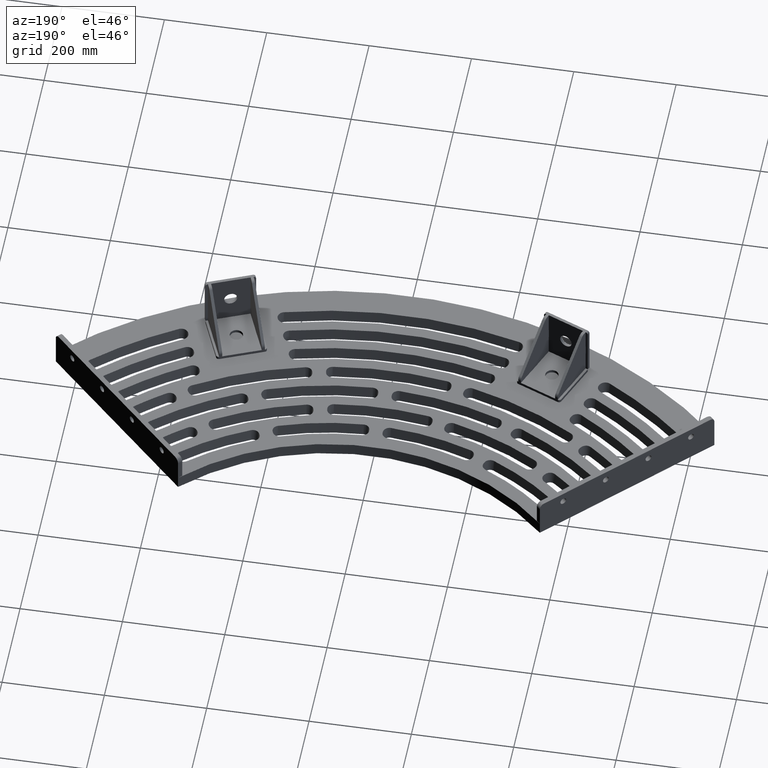
[diagram: clean part render]
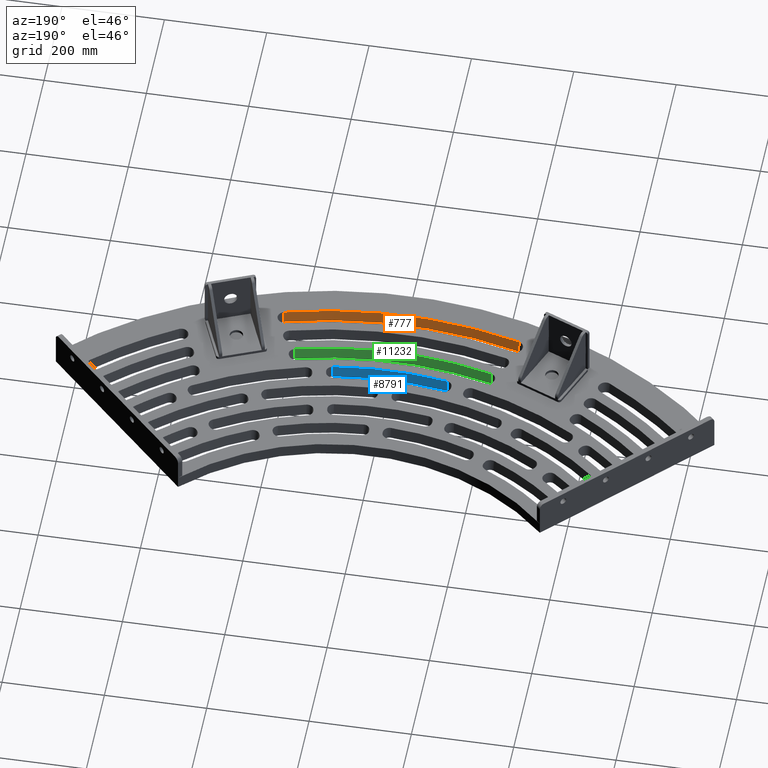
[diagram: same view with three faces highlighted in distinct colors, each labeled with its STEP entity id]
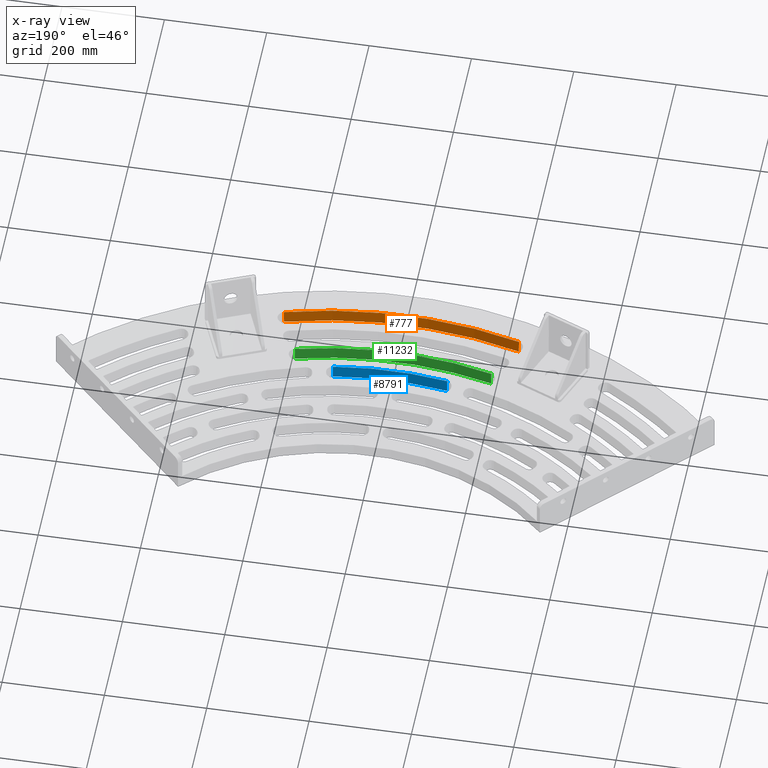
[diagram: x-ray of the same camera — body ghosted, the three highlighted faces saturated]
A machine part, auxiliary view with three faces highlighted in distinct colors.
The next image is the same camera in x-ray (body ghosted, the three faces saturated) — at least one of them is partly hidden behind the body in this view.
Their STEP definitions:

[orange] entity #777 — the highlighted conical surface has half-angle 4 deg.
#137 = VERTEX_POINT ( 'NONE', #551 ) ;
#373 = VERTEX_POINT ( 'NONE', #11438 ) ;
#551 = CARTESIAN_POINT ( 'NONE',  ( 229.2132726344615321, -823.7027835622509429, 1.665334536937734811E-13 ) ) ;
#571 = VERTEX_POINT ( 'NONE', #3652 ) ;
#574 = CARTESIAN_POINT ( 'NONE',  ( 0.000000000000000000, 0.000000000000000000, 0.000000000000000000 ) ) ;
#777 = ADVANCED_FACE ( 'NONE', ( #4763 ), #3817, .F. ) ;
#1116 = LINE ( 'NONE', #11619, #1587 ) ;
#1379 = ORIENTED_EDGE ( 'NONE', *, *, #3030, .T. ) ;
#1587 = VECTOR ( 'NONE', #4049, 1000.000000000000114 ) ;
#1700 = VECTOR ( 'NONE', #1847, 1000.000000000000114 ) ;
#1716 = LINE ( 'NONE', #7487, #1700 ) ;
#1721 = ORIENTED_EDGE ( 'NONE', *, *, #9944, .F. ) ;
#1847 = DIRECTION ( 'NONE',  ( 0.01870071302260914795, 0.06720304280061172031, 0.9975640502598241977 ) ) ;
#2896 = AXIS2_PLACEMENT_3D ( 'NONE', #8711, #9876, #4234 ) ;
#2908 = ORIENTED_EDGE ( 'NONE', *, *, #11675, .F. ) ;
#3021 = DIRECTION ( 'NONE',  ( 1.000000000000000000, -6.192194466414940491E-16, -2.185460951963199771E-18 ) ) ;
#3030 = EDGE_CURVE ( 'NONE', #11395, #571, #1716, .T. ) ;
#3652 = CARTESIAN_POINT ( 'NONE',  ( -229.2132726344603952, -823.7027835622508292, 1.561251128379126385E-13 ) ) ;
#3817 = CONICAL_SURFACE ( 'NONE', #4610, 855.0000000000000000, 0.06981317007977333455 ) ;
#4049 = DIRECTION ( 'NONE',  ( -0.01870071302260920346, 0.06720304280061172031, 0.9975640502598241977 ) ) ;
#4234 = DIRECTION ( 'NONE',  ( -1.000000000000000000, 6.192194466414939505E-16, 4.049552800030453744E-18 ) ) ;
#4610 = AXIS2_PLACEMENT_3D ( 'NONE', #8560, #10536, #3021 ) ;
#4763 = FACE_OUTER_BOUND ( 'NONE', #7913, .T. ) ;
#5203 = AXIS2_PLACEMENT_3D ( 'NONE', #574, #10220, #5437 ) ;
#5437 = DIRECTION ( 'NONE',  ( 1.000000000000000000, -6.192194466414940491E-16, -2.185460951963199771E-18 ) ) ;
#6293 = ORIENTED_EDGE ( 'NONE', *, *, #8084, .T. ) ;
#7392 = CIRCLE ( 'NONE', #5203, 855.0000000000000000 ) ;
#7438 = CIRCLE ( 'NONE', #2896, 856.7481702985877519 ) ;
#7487 = CARTESIAN_POINT ( 'NONE',  ( -229.2132726344603952, -823.7027835622508292, 1.526556658859590243E-13 ) ) ;
#7913 = EDGE_LOOP ( 'NONE', ( #6293, #2908, #1721, #1379 ) ) ;
#8084 = EDGE_CURVE ( 'NONE', #571, #137, #7392, .T. ) ;
#8560 = CARTESIAN_POINT ( 'NONE',  ( 0.000000000000000000, 0.000000000000000000, 0.000000000000000000 ) ) ;
#8711 = CARTESIAN_POINT ( 'NONE',  ( 5.463652379908002509E-17, 4.878909776184770742E-15, -25.00000000000000000 ) ) ;
#9132 = CARTESIAN_POINT ( 'NONE',  ( -229.6819320909067983, -825.3869622067976479, -24.99999999999984368 ) ) ;
#9876 = DIRECTION ( 'NONE',  ( -2.185460951963199771E-18, -1.951563910473907981E-16, 1.000000000000000000 ) ) ;
#9944 = EDGE_CURVE ( 'NONE', #11395, #373, #7438, .T. ) ;
#10220 = DIRECTION ( 'NONE',  ( -2.185460951963199771E-18, -1.951563910473907981E-16, 1.000000000000000000 ) ) ;
#10536 = DIRECTION ( 'NONE',  ( 2.185460951963199771E-18, 1.951563910473907981E-16, -1.000000000000000000 ) ) ;
#11395 = VERTEX_POINT ( 'NONE', #9132 ) ;
#11438 = CARTESIAN_POINT ( 'NONE',  ( 229.6819320909079352, -825.3869622067976479, -24.99999999999983658 ) ) ;
#11619 = CARTESIAN_POINT ( 'NONE',  ( 229.2132726344615321, -823.7027835622508292, 1.595945597898662527E-13 ) ) ;
#11675 = EDGE_CURVE ( 'NONE', #373, #137, #1116, .T. ) ;

[blue] entity #8791 — the highlighted conical surface has half-angle 4 deg.
#23 = EDGE_CURVE ( 'NONE', #2207, #9257, #2454, .T. ) ;
#334 = DIRECTION ( 'NONE',  ( -2.185460951963199771E-18, -1.951563910473907981E-16, 1.000000000000000000 ) ) ;
#1282 = VERTEX_POINT ( 'NONE', #10810 ) ;
#1325 = CARTESIAN_POINT ( 'NONE',  ( -111.5375193751718825, -696.1209534065413891, 1.249000902703301108E-13 ) ) ;
#1681 = CIRCLE ( 'NONE', #3679, 706.7481702985877519 ) ;
#1810 = EDGE_CURVE ( 'NONE', #1282, #5898, #1681, .T. ) ;
#2047 = EDGE_CURVE ( 'NONE', #1282, #2207, #11470, .T. ) ;
#2193 = CARTESIAN_POINT ( 'NONE',  ( 0.000000000000000000, 0.000000000000000000, 0.000000000000000000 ) ) ;
#2207 = VERTEX_POINT ( 'NONE', #1325 ) ;
#2312 = DIRECTION ( 'NONE',  ( 1.000000000000000000, -6.192194466414939505E-16, -2.185460951963199771E-18 ) ) ;
#2406 = DIRECTION ( 'NONE',  ( -2.185460951963199771E-18, -1.951563910473907981E-16, 1.000000000000000000 ) ) ;
#2454 = CIRCLE ( 'NONE', #8815, 705.0000000000000000 ) ;
#2869 = CONICAL_SURFACE ( 'NONE', #3056, 705.0000000000000000, 0.06981317007977333455 ) ;
#2964 = CARTESIAN_POINT ( 'NONE',  ( -111.5375193751718825, -696.1209534065413891, 1.249000902703301108E-13 ) ) ;
#3056 = AXIS2_PLACEMENT_3D ( 'NONE', #7756, #4784, #3854 ) ;
#3374 = CARTESIAN_POINT ( 'NONE',  ( 111.5375193751723941, -696.1209534065426396, 1.457167719820517959E-13 ) ) ;
#3679 = AXIS2_PLACEMENT_3D ( 'NONE', #11841, #2406, #6944 ) ;
#3715 = CARTESIAN_POINT ( 'NONE',  ( 111.5375193751723799, -696.1209534065426396, 1.457167719820517959E-13 ) ) ;
#3854 = DIRECTION ( 'NONE',  ( 1.000000000000000000, -6.192194466414939505E-16, -2.185460951963199771E-18 ) ) ;
#4096 = VECTOR ( 'NONE', #6751, 1000.000000000000114 ) ;
#4373 = LINE ( 'NONE', #3374, #6005 ) ;
#4784 = DIRECTION ( 'NONE',  ( 2.185460951963199771E-18, 1.951563910473907981E-16, -1.000000000000000000 ) ) ;
#4785 = ORIENTED_EDGE ( 'NONE', *, *, #6234, .F. ) ;
#4865 = CARTESIAN_POINT ( 'NONE',  ( 111.8140960823352827, -697.8471065625279834, -24.99999999999985434 ) ) ;
#5439 = ORIENTED_EDGE ( 'NONE', *, *, #23, .T. ) ;
#5898 = VERTEX_POINT ( 'NONE', #4865 ) ;
#6005 = VECTOR ( 'NONE', #11948, 1000.000000000000114 ) ;
#6234 = EDGE_CURVE ( 'NONE', #5898, #9257, #4373, .T. ) ;
#6751 = DIRECTION ( 'NONE',  ( 0.01103611920819726547, 0.06887793334615441299, 0.9975640502598241977 ) ) ;
#6944 = DIRECTION ( 'NONE',  ( -1.000000000000000000, 6.192194466414939505E-16, 0.000000000000000000 ) ) ;
#7252 = ORIENTED_EDGE ( 'NONE', *, *, #2047, .T. ) ;
#7756 = CARTESIAN_POINT ( 'NONE',  ( 0.000000000000000000, 0.000000000000000000, 0.000000000000000000 ) ) ;
#7938 = EDGE_LOOP ( 'NONE', ( #5439, #4785, #11649, #7252 ) ) ;
#8791 = ADVANCED_FACE ( 'NONE', ( #11610 ), #2869, .F. ) ;
#8815 = AXIS2_PLACEMENT_3D ( 'NONE', #2193, #334, #2312 ) ;
#9257 = VERTEX_POINT ( 'NONE', #3715 ) ;
#10810 = CARTESIAN_POINT ( 'NONE',  ( -111.8140960823347712, -697.8471065625273013, -24.99999999999987566 ) ) ;
#11470 = LINE ( 'NONE', #2964, #4096 ) ;
#11610 = FACE_OUTER_BOUND ( 'NONE', #7938, .T. ) ;
#11649 = ORIENTED_EDGE ( 'NONE', *, *, #1810, .F. ) ;
#11841 = CARTESIAN_POINT ( 'NONE',  ( 5.463652379908002509E-17, 4.878909776184770742E-15, -25.00000000000000000 ) ) ;
#11948 = DIRECTION ( 'NONE',  ( -0.01103611920819731231, 0.06887793334615442686, 0.9975640502598241977 ) ) ;

[green] entity #11232 — the highlighted conical surface has half-angle 4 deg.
#1222 = CARTESIAN_POINT ( 'NONE',  ( 5.463652379908002509E-17, 4.878909776184770742E-15, -25.00000000000000000 ) ) ;
#1372 = CONICAL_SURFACE ( 'NONE', #8732, 754.9999999999998863, 0.06981317007977333455 ) ;
#1749 = CARTESIAN_POINT ( 'NONE',  ( 0.000000000000000000, 0.000000000000000000, 0.000000000000000000 ) ) ;
#2043 = CARTESIAN_POINT ( 'NONE',  ( -191.5598896873591173, -730.2943301593998058, 1.491862189340054101E-13 ) ) ;
#2474 = EDGE_CURVE ( 'NONE', #5920, #9152, #4890, .T. ) ;
#2554 = AXIS2_PLACEMENT_3D ( 'NONE', #1222, #5021, #8809 ) ;
#2787 = VERTEX_POINT ( 'NONE', #10552 ) ;
#2971 = LINE ( 'NONE', #2043, #7553 ) ;
#3250 = ORIENTED_EDGE ( 'NONE', *, *, #2474, .T. ) ;
#3320 = EDGE_LOOP ( 'NONE', ( #3250, #7294, #7211, #7234 ) ) ;
#3553 = EDGE_CURVE ( 'NONE', #8042, #5920, #2971, .T. ) ;
#3768 = CIRCLE ( 'NONE', #2554, 756.7481702985876382 ) ;
#4100 = DIRECTION ( 'NONE',  ( 0.01769873167603133388, 0.06747385068509635653, 0.9975640502598241977 ) ) ;
#4890 = CIRCLE ( 'NONE', #8253, 754.9999999999998863 ) ;
#5021 = DIRECTION ( 'NONE',  ( -2.185460951963199771E-18, -1.951563910473907981E-16, 1.000000000000000000 ) ) ;
#5054 = DIRECTION ( 'NONE',  ( 2.185460951963199771E-18, 1.951563910473907981E-16, -1.000000000000000000 ) ) ;
#5535 = LINE ( 'NONE', #8266, #10326 ) ;
#5920 = VERTEX_POINT ( 'NONE', #7844 ) ;
#7020 = DIRECTION ( 'NONE',  ( 1.000000000000000000, -6.192194466414941478E-16, -2.185460951963199771E-18 ) ) ;
#7211 = ORIENTED_EDGE ( 'NONE', *, *, #10863, .F. ) ;
#7234 = ORIENTED_EDGE ( 'NONE', *, *, #3553, .T. ) ;
#7294 = ORIENTED_EDGE ( 'NONE', *, *, #11454, .F. ) ;
#7553 = VECTOR ( 'NONE', #4100, 1000.000000000000114 ) ;
#7844 = CARTESIAN_POINT ( 'NONE',  ( -191.5598896873591173, -730.2943301593998058, 1.457167719820517959E-13 ) ) ;
#8042 = VERTEX_POINT ( 'NONE', #11153 ) ;
#8253 = AXIS2_PLACEMENT_3D ( 'NONE', #1749, #8530, #12263 ) ;
#8266 = CARTESIAN_POINT ( 'NONE',  ( 191.5598896873597141, -730.2943301593998058, 1.526556658859590243E-13 ) ) ;
#8530 = DIRECTION ( 'NONE',  ( -2.185460951963199771E-18, -1.951563910473907981E-16, 1.000000000000000000 ) ) ;
#8732 = AXIS2_PLACEMENT_3D ( 'NONE', #8892, #5054, #7020 ) ;
#8809 = DIRECTION ( 'NONE',  ( 1.000000000000000000, -6.192194466414940491E-16, 0.000000000000000000 ) ) ;
#8892 = CARTESIAN_POINT ( 'NONE',  ( 0.000000000000000000, 0.000000000000000000, 0.000000000000000000 ) ) ;
#9152 = VERTEX_POINT ( 'NONE', #10421 ) ;
#10132 = DIRECTION ( 'NONE',  ( -0.01769873167603161837, 0.06747385068509630102, 0.9975640502598241977 ) ) ;
#10326 = VECTOR ( 'NONE', #10132, 1000.000000000000114 ) ;
#10421 = CARTESIAN_POINT ( 'NONE',  ( 191.5598896873596857, -730.2943301593998058, 1.457167719820517959E-13 ) ) ;
#10552 = CARTESIAN_POINT ( 'NONE',  ( 192.0034384417335787, -731.9852955331900830, -24.99999999999985434 ) ) ;
#10863 = EDGE_CURVE ( 'NONE', #8042, #2787, #3768, .T. ) ;
#11153 = CARTESIAN_POINT ( 'NONE',  ( -192.0034384417327828, -731.9852955331900830, -24.99999999999985434 ) ) ;
#11232 = ADVANCED_FACE ( 'NONE', ( #11746 ), #1372, .F. ) ;
#11454 = EDGE_CURVE ( 'NONE', #2787, #9152, #5535, .T. ) ;
#11746 = FACE_OUTER_BOUND ( 'NONE', #3320, .T. ) ;
#12263 = DIRECTION ( 'NONE',  ( 1.000000000000000000, -6.192194466414941478E-16, -2.185460951963199771E-18 ) ) ;